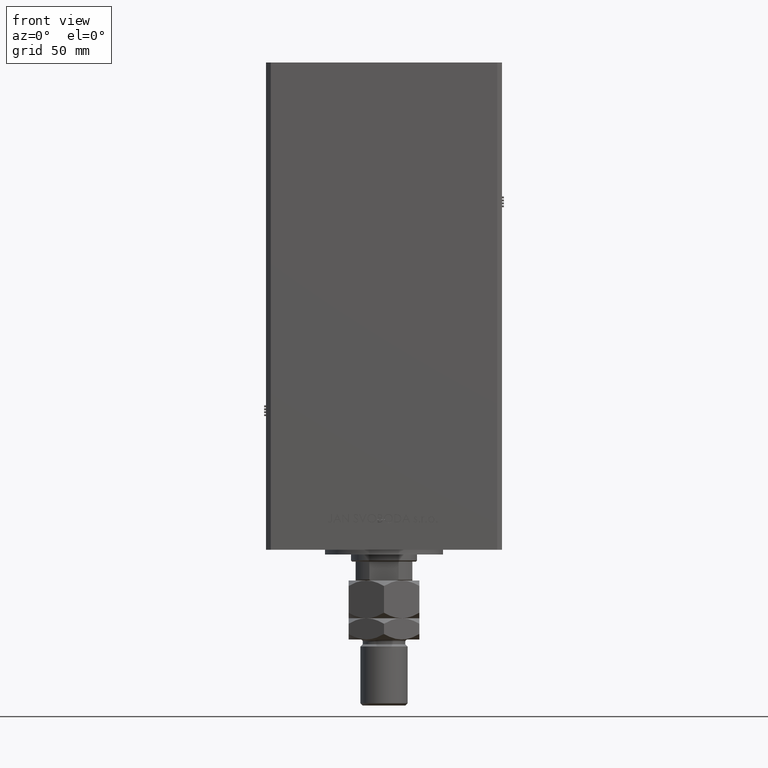
[diagram: clean part render]
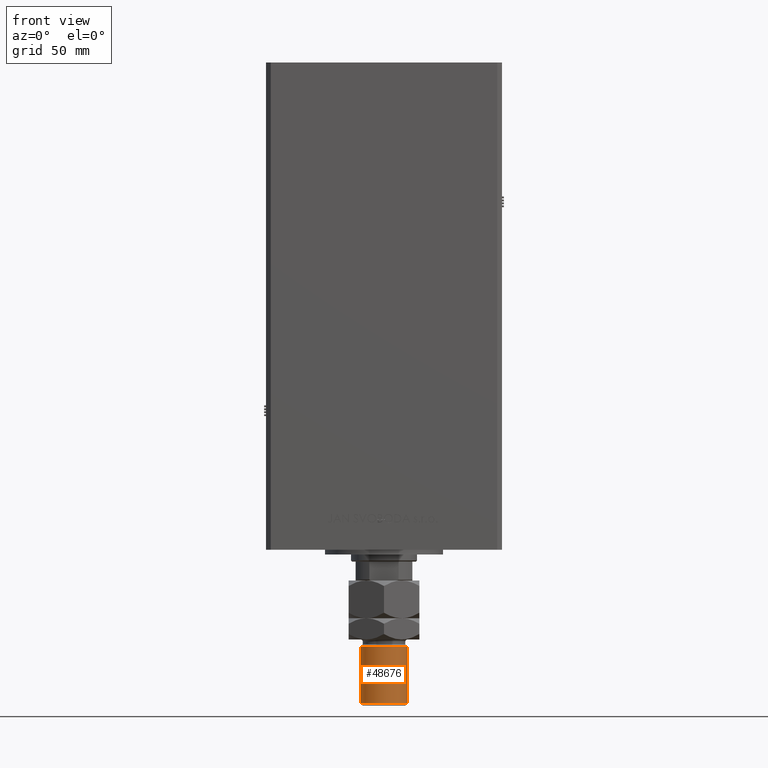
[diagram: same view with one face highlighted and labeled with its STEP entity id]
A machine part, front view. The second image highlights one B-rep face of the part: STEP entity #48676.
In plain terms, the highlighted cylindrical surface (edge-blend (fillet) strip) has radius 10 mm, axis along (0, -0, 1).
Its self-contained STEP definition (entity closure, byte-faithful):
#4850 = DIRECTION ( 'NONE',  ( 1.000000000000000000, 0.000000000000000000, 0.000000000000000000 ) ) ;
#6298 = VERTEX_POINT ( 'NONE', #42642 ) ;
#9944 = CARTESIAN_POINT ( 'NONE',  ( 10.00000000000000000, 1.224646799147353059E-15, 52.00000000000004974 ) ) ;
#10315 = CARTESIAN_POINT ( 'NONE',  ( 0.000000000000000000, 0.000000000000000000, 53.00000000000000711 ) ) ;
#10577 = DIRECTION ( 'NONE',  ( -1.000000000000000000, 0.000000000000000000, 0.000000000000000000 ) ) ;
#11582 = CARTESIAN_POINT ( 'NONE',  ( 10.00000000000000000, 1.224646799147353059E-15, 53.00000000000000711 ) ) ;
#11937 = VERTEX_POINT ( 'NONE', #9944 ) ;
#12472 = ORIENTED_EDGE ( 'NONE', *, *, #30520, .F. ) ;
#13161 = VECTOR ( 'NONE', #15948, 1000.000000000000000 ) ;
#15948 = DIRECTION ( 'NONE',  ( -0.000000000000000000, -0.000000000000000000, -1.000000000000000000 ) ) ;
#17491 = LINE ( 'NONE', #11582, #13161 ) ;
#18630 = CARTESIAN_POINT ( 'NONE',  ( 10.00000000000000000, 1.224646799147353059E-15, 28.00000000000002487 ) ) ;
#19308 = EDGE_LOOP ( 'NONE', ( #12472, #46152, #21236, #38611 ) ) ;
#19450 = EDGE_CURVE ( 'NONE', #11937, #6298, #39670, .T. ) ;
#20440 = EDGE_CURVE ( 'NONE', #6298, #49438, #34073, .T. ) ;
#21236 = ORIENTED_EDGE ( 'NONE', *, *, #20440, .T. ) ;
#22007 = DIRECTION ( 'NONE',  ( 0.000000000000000000, 0.000000000000000000, -1.000000000000000000 ) ) ;
#22843 = DIRECTION ( 'NONE',  ( -0.000000000000000000, -0.000000000000000000, -1.000000000000000000 ) ) ;
#26350 = CARTESIAN_POINT ( 'NONE',  ( 0.000000000000000000, 0.000000000000000000, 52.00000000000004974 ) ) ;
#30520 = EDGE_CURVE ( 'NONE', #11937, #46274, #17491, .T. ) ;
#32582 = FACE_OUTER_BOUND ( 'NONE', #19308, .T. ) ;
#34073 = LINE ( 'NONE', #50902, #38862 ) ;
#34541 = DIRECTION ( 'NONE',  ( 1.000000000000000000, 0.000000000000000000, 0.000000000000000000 ) ) ;
#34810 = DIRECTION ( 'NONE',  ( -0.000000000000000000, -0.000000000000000000, 1.000000000000000000 ) ) ;
#35647 = CARTESIAN_POINT ( 'NONE',  ( -10.00000000000000000, 0.000000000000000000, 28.00000000000002487 ) ) ;
#37607 = DIRECTION ( 'NONE',  ( -0.000000000000000000, -0.000000000000000000, -1.000000000000000000 ) ) ;
#38611 = ORIENTED_EDGE ( 'NONE', *, *, #50357, .T. ) ;
#38862 = VECTOR ( 'NONE', #37607, 1000.000000000000000 ) ;
#39670 = CIRCLE ( 'NONE', #44867, 10.00000000000000000 ) ;
#39749 = CIRCLE ( 'NONE', #42396, 10.00000000000000000 ) ;
#40565 = AXIS2_PLACEMENT_3D ( 'NONE', #10315, #22843, #10577 ) ;
#42396 = AXIS2_PLACEMENT_3D ( 'NONE', #46756, #34810, #34541 ) ;
#42642 = CARTESIAN_POINT ( 'NONE',  ( -10.00000000000000000, 0.000000000000000000, 52.00000000000004974 ) ) ;
#44867 = AXIS2_PLACEMENT_3D ( 'NONE', #26350, #22007, #4850 ) ;
#46152 = ORIENTED_EDGE ( 'NONE', *, *, #19450, .T. ) ;
#46274 = VERTEX_POINT ( 'NONE', #18630 ) ;
#46756 = CARTESIAN_POINT ( 'NONE',  ( 0.000000000000000000, 0.000000000000000000, 28.00000000000002487 ) ) ;
#48676 = ADVANCED_FACE ( 'NONE', ( #32582 ), #49138, .T. ) ;
#49138 = CYLINDRICAL_SURFACE ( 'NONE', #40565, 10.00000000000000000 ) ;
#49438 = VERTEX_POINT ( 'NONE', #35647 ) ;
#50357 = EDGE_CURVE ( 'NONE', #49438, #46274, #39749, .T. ) ;
#50902 = CARTESIAN_POINT ( 'NONE',  ( -10.00000000000000000, 0.000000000000000000, 53.00000000000000711 ) ) ;